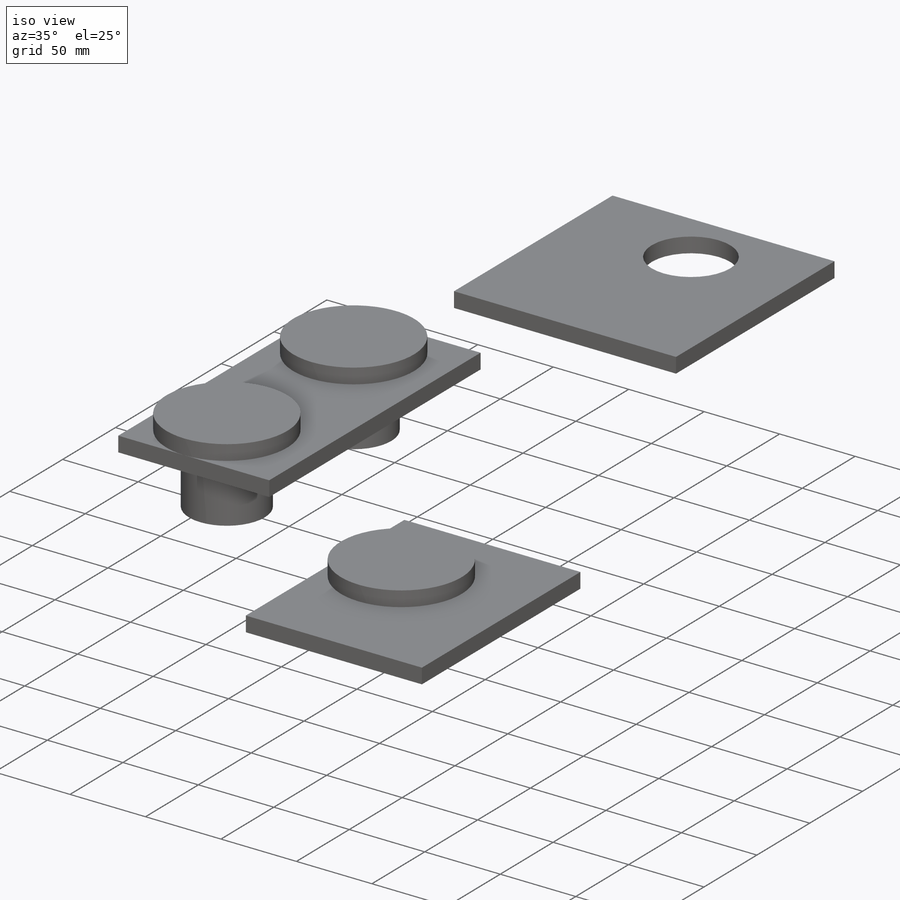
[diagram: iso view]
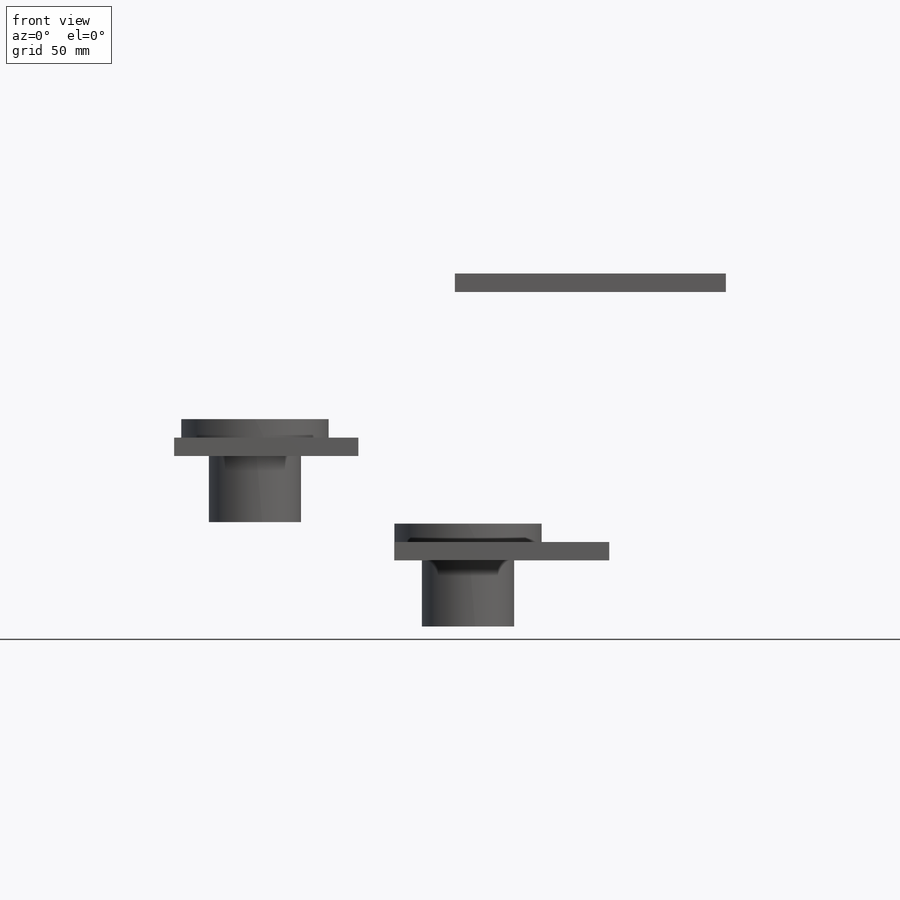
[diagram: front view]
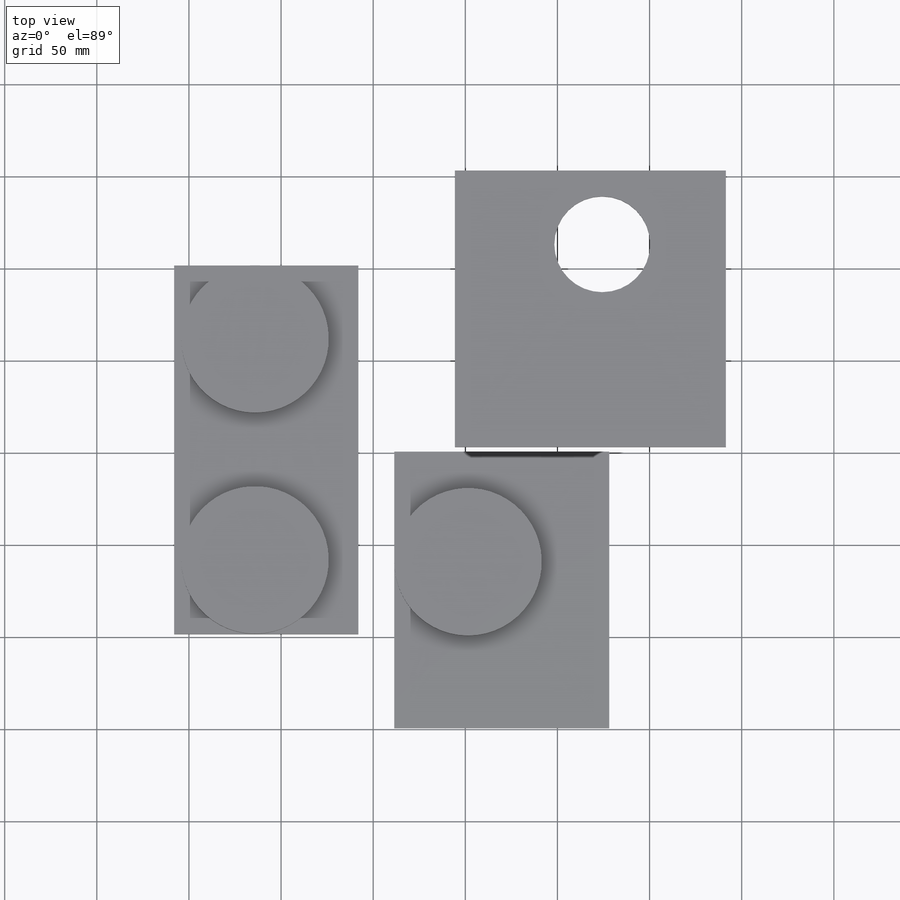
[diagram: top view]
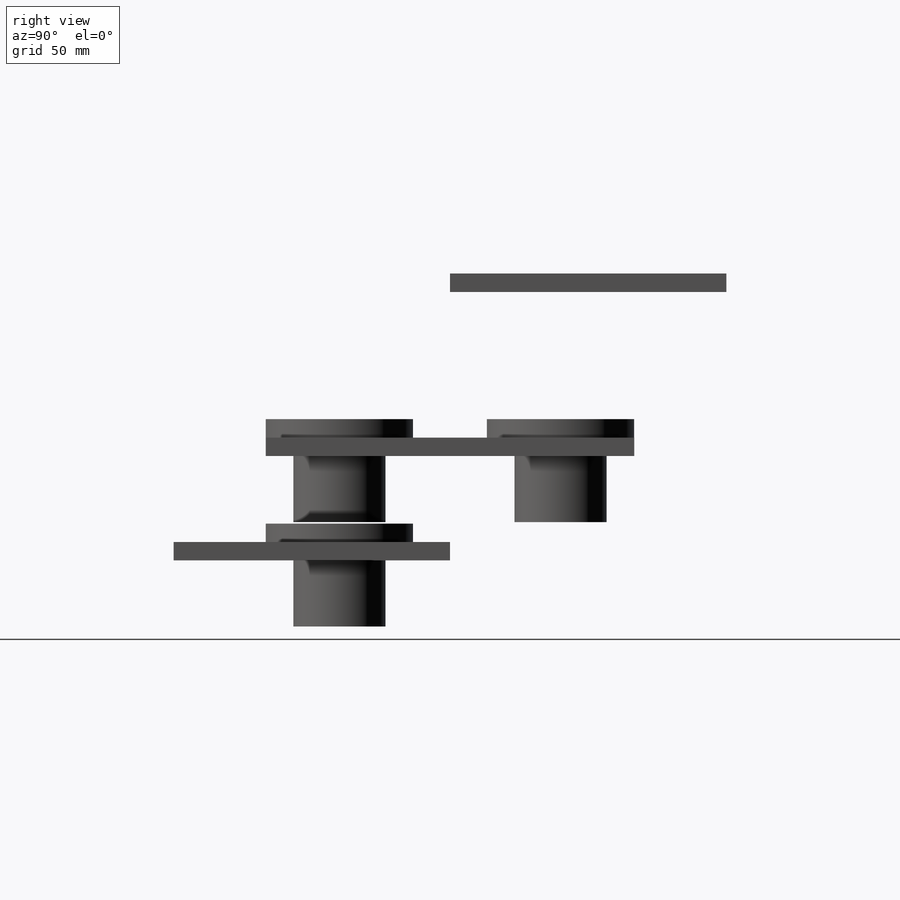
[diagram: right view]
SOLIDWORKS PART (.sldprt)
format: sldprt  version: not decoded by parser v0  size: 293,888 bytes
history: native  units: mm
features: sketch x8, plane x5, revolve x3, material x1, hole x1 + 3 further entries (+9 scaffold rows collapsed)
feature tree (30):
  scaffold x9  (default folders/planes/origin — collapsed)
  material  "Material <nicht festgelegt>"
  "Zuschnittslistenelement2"
  "Zuschnittslistenelement3"
  "Zuschnittslistenelement4"
  plane  "Ebene vorne"
  plane  "Ebene oben"
  plane  "Ebene rechts"
  sketch  "Skizze1"  dims[D1=200.0mm D5=10.0mm D6=10.0mm D7=5.0mm]
  sketch  "Skizze1<3>"  dims[D1=150.0mm D5=10.0mm D6=10.0mm D7=5.0mm]
  sketch  "Skizze1<4>"  dims[D1=150.0mm D5=10.0mm D6=10.0mm D7=5.0mm]
  hole  "Ø2.0 (2) Durchmesser Bohrung1"  Diameter=52mm Depth=66.65575mm
  sketch  "3D-Skizze1"  dims[D1=40.0mm D2=40.0mm D3=~43.904392mm D4=40.0mm D5=80.0mm D6=40.0mm]
  sketch  "Skizze2"  dims[hole-wizard template sketch: 59 standard entries collapsed; hole parameters kept: c18.Bohrerdurchmesser=52.0mm c18.Bohrungstiefe=~66.65575mm]
  plane  "Ebene1"
  sketch  "Skizze3"  dims[c1.D1=25.0mm c1.D2=10.0mm c1.D3=40.0mm c2.D1=25.0mm c2.D2=10.0mm c2.D3=40.0mm]
  revolve  "Rotation1"  Angle=360deg
  revolve  "Rotation2"  [1 undecoded]
  sketch  "Skizze3<3>"  dims[D1=360.0deg]
  plane  "Ebene2"
  sketch  "Skizze5"
  revolve  "Rotation3"  Angle=360deg
decode coverage: 10 of 12 modeling features carry decoded parameters; 3 rows unclassified (native names shown)
note: ~ marks probable driven/reference dimensions
note: 1 parameter value undecoded
note: suppression state not decoded; provenance and decode notes live in map.json
